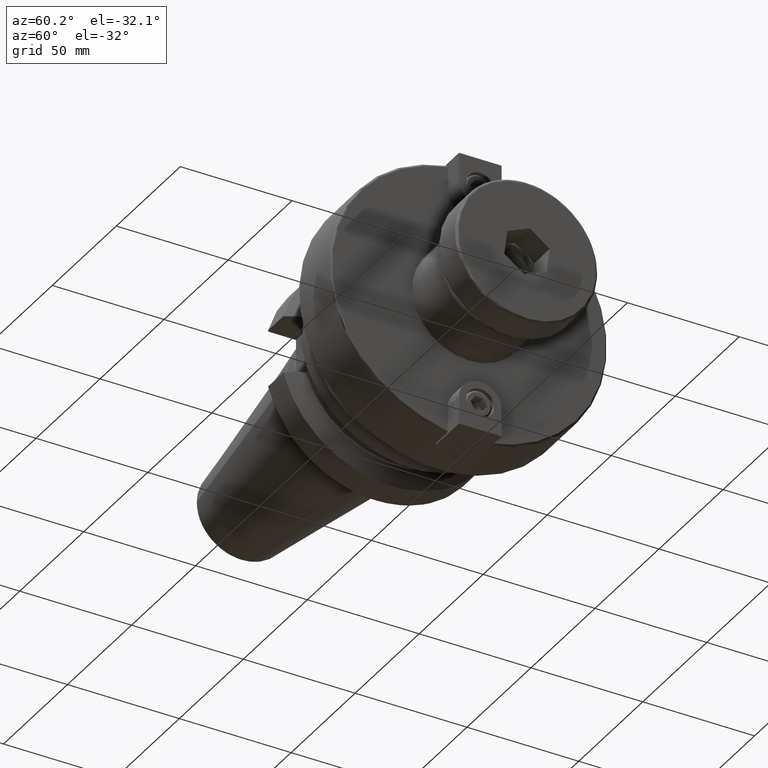
[diagram: clean part render]
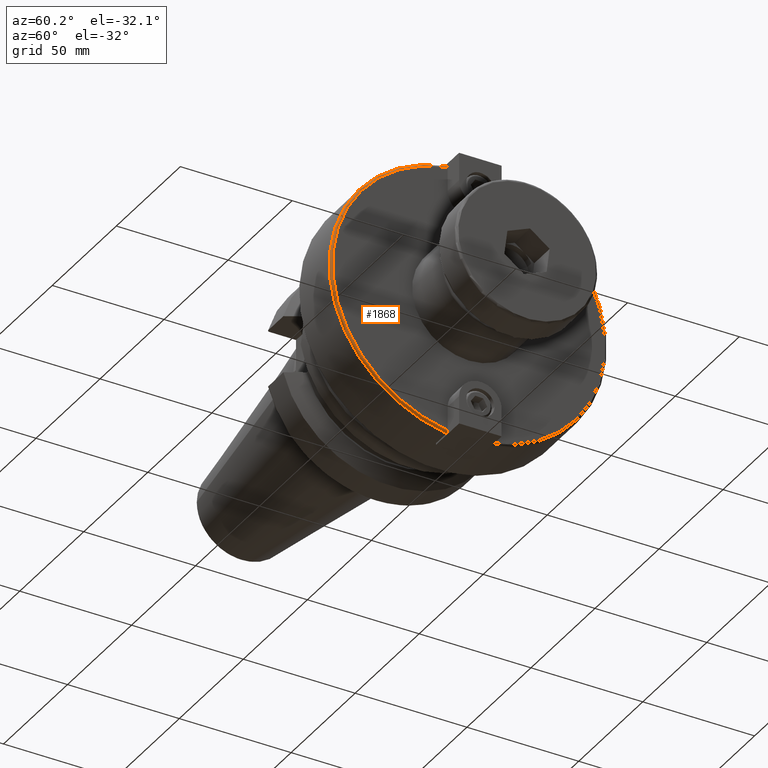
[diagram: same view with one face highlighted and labeled with its STEP entity id]
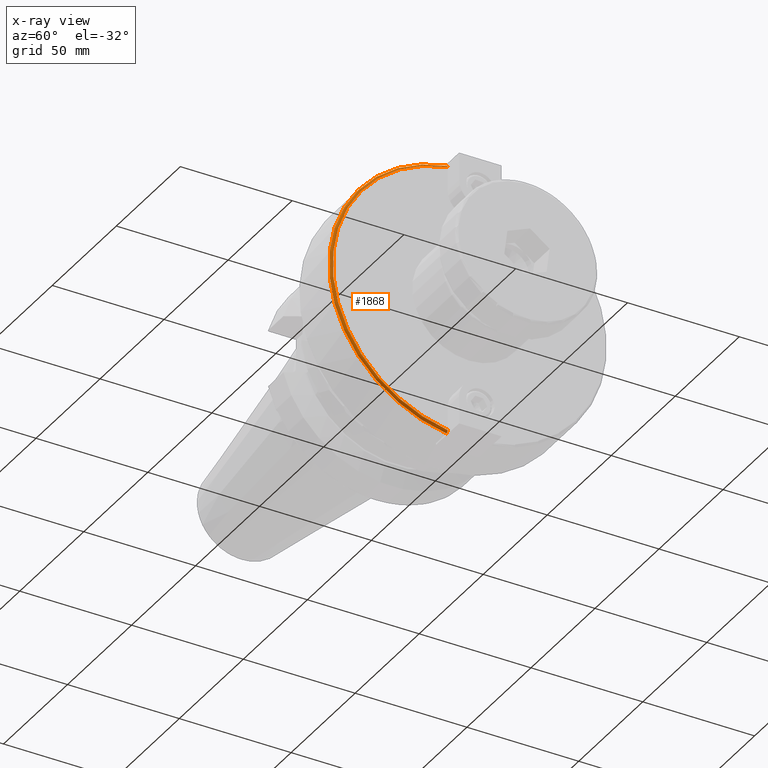
[diagram: x-ray of the same camera — body ghosted, the highlighted face saturated]
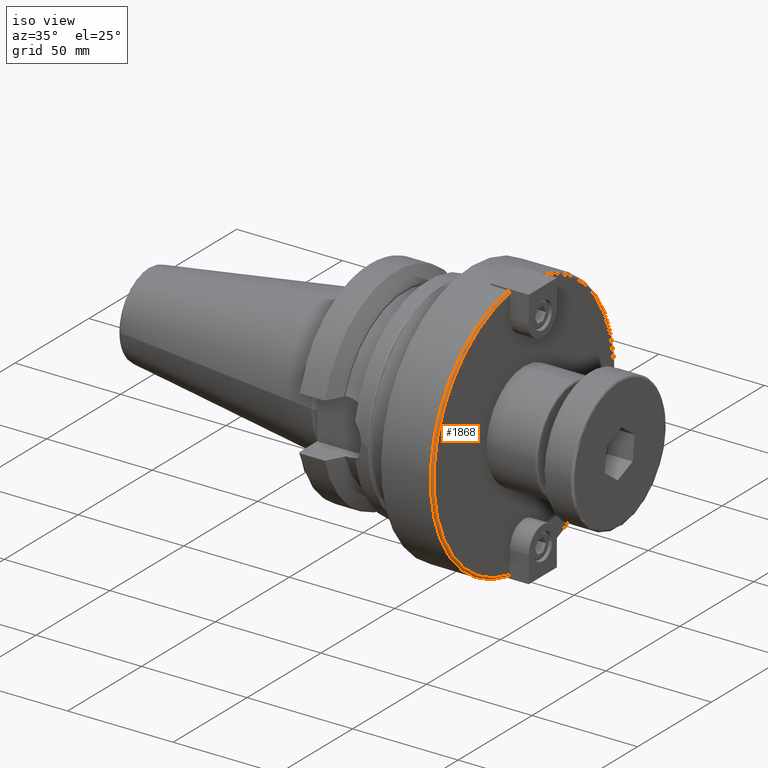
[diagram: same view with one face highlighted and labeled with its STEP entity id]
A machine part, auxiliary view. The second image highlights one B-rep face of the part: STEP entity #1868.
The next image is the same camera in x-ray: the body ghosted, the highlighted face saturated — about 0% of this face is hidden behind the body in this view.
A second angle (iso view) of the same face is appended — the face is thin or edge-on in the first view.
In plain terms, the highlighted toroidal blend (fillet) surface has major radius 60.975 mm and minor (blend) radius 1 mm.
Its self-contained STEP definition (entity closure, byte-faithful):
#64=TOROIDAL_SURFACE('',#2099,60.975,1.);
#135=CIRCLE('',#2095,60.975);
#139=CIRCLE('',#2100,61.975);
#276=FACE_OUTER_BOUND('',#396,.T.);
#396=EDGE_LOOP('',(#1286,#1287,#1288,#1289));
#771=B_SPLINE_CURVE_WITH_KNOTS('',3,(#2969,#2970,#2971,#2972,#2973,#2974,
#2975,#2976,#2977,#2978),.UNSPECIFIED.,.F.,.F.,(4,2,2,2,4),(-0.149005068012741,
-0.111376566035107,-0.0739890024156294,-0.036881362916068,0.),
 .UNSPECIFIED.);
#773=B_SPLINE_CURVE_WITH_KNOTS('',3,(#3037,#3038,#3039,#3040,#3041,#3042,
#3043,#3044,#3045,#3046),.UNSPECIFIED.,.F.,.F.,(4,2,2,2,4),(0.,0.0368813629160661,
0.0739890024156294,0.111376566035107,0.149005068012741),.UNSPECIFIED.);
#790=VERTEX_POINT('',#2967);
#791=VERTEX_POINT('',#2968);
#804=VERTEX_POINT('',#3023);
#809=VERTEX_POINT('',#3035);
#971=EDGE_CURVE('',#790,#791,#771,.T.);
#989=EDGE_CURVE('',#804,#790,#135,.T.);
#995=EDGE_CURVE('',#791,#809,#139,.T.);
#996=EDGE_CURVE('',#809,#804,#773,.T.);
#1286=ORIENTED_EDGE('',*,*,#971,.T.);
#1287=ORIENTED_EDGE('',*,*,#995,.T.);
#1288=ORIENTED_EDGE('',*,*,#996,.T.);
#1289=ORIENTED_EDGE('',*,*,#989,.T.);
#1868=ADVANCED_FACE('',(#276),#64,.T.);
#2095=AXIS2_PLACEMENT_3D('',#3024,#2373,#2374);
#2099=AXIS2_PLACEMENT_3D('',#3034,#2383,#2384);
#2100=AXIS2_PLACEMENT_3D('',#3036,#2385,#2386);
#2373=DIRECTION('center_axis',(-1.,0.,0.));
#2374=DIRECTION('ref_axis',(0.,1.22464679914735E-16,1.));
#2383=DIRECTION('center_axis',(1.,0.,0.));
#2384=DIRECTION('ref_axis',(0.,0.,-1.));
#2385=DIRECTION('center_axis',(1.,0.,0.));
#2386=DIRECTION('ref_axis',(0.,1.22464679914735E-16,1.));
#2967=CARTESIAN_POINT('',(76.2,-9.525,60.2264476787399));
#2968=CARTESIAN_POINT('',(75.2,-9.525,61.2386724219263));
#2969=CARTESIAN_POINT('Ctrl Pts',(76.2,-9.525,60.2264476787399));
#2970=CARTESIAN_POINT('Ctrl Pts',(76.2,-9.525,60.3518760186654));
#2971=CARTESIAN_POINT('Ctrl Pts',(76.1708949523002,-9.525,60.4995491806674));
#2972=CARTESIAN_POINT('Ctrl Pts',(76.0757811952789,-9.525,60.7308069418092));
#2973=CARTESIAN_POINT('Ctrl Pts',(75.9932191094219,-9.525,60.8555016914715));
#2974=CARTESIAN_POINT('Ctrl Pts',(75.8182738618347,-9.525,61.0317278630348));
#2975=CARTESIAN_POINT('Ctrl Pts',(75.6952029949759,-9.525,61.1147049217817));
#2976=CARTESIAN_POINT('Ctrl Pts',(75.4675798738375,-9.525,61.2096474075032));
#2977=CARTESIAN_POINT('Ctrl Pts',(75.3229378763869,-9.525,61.2386724219263));
#2978=CARTESIAN_POINT('Ctrl Pts',(75.2,-9.525,61.2386724219263));
#3023=CARTESIAN_POINT('',(76.2,-9.525,-60.2264476787399));
#3024=CARTESIAN_POINT('Origin',(76.2,0.,0.));
#3034=CARTESIAN_POINT('Origin',(75.2,0.,0.));
#3035=CARTESIAN_POINT('',(75.2,-9.525,-61.2386724219263));
#3036=CARTESIAN_POINT('Origin',(75.2,0.,0.));
#3037=CARTESIAN_POINT('Ctrl Pts',(75.2,-9.525,-61.2386724219263));
#3038=CARTESIAN_POINT('Ctrl Pts',(75.3229378763869,-9.525,-61.2386724219263));
#3039=CARTESIAN_POINT('Ctrl Pts',(75.4675798738375,-9.525,-61.2096474075032));
#3040=CARTESIAN_POINT('Ctrl Pts',(75.6952029949759,-9.525,-61.1147049217817));
#3041=CARTESIAN_POINT('Ctrl Pts',(75.8182738618347,-9.525,-61.0317278630348));
#3042=CARTESIAN_POINT('Ctrl Pts',(75.9932191094219,-9.525,-60.8555016914715));
#3043=CARTESIAN_POINT('Ctrl Pts',(76.0757811952789,-9.525,-60.7308069418092));
#3044=CARTESIAN_POINT('Ctrl Pts',(76.1708949523002,-9.525,-60.4995491806674));
#3045=CARTESIAN_POINT('Ctrl Pts',(76.2,-9.525,-60.3518760186654));
#3046=CARTESIAN_POINT('Ctrl Pts',(76.2,-9.525,-60.2264476787399));